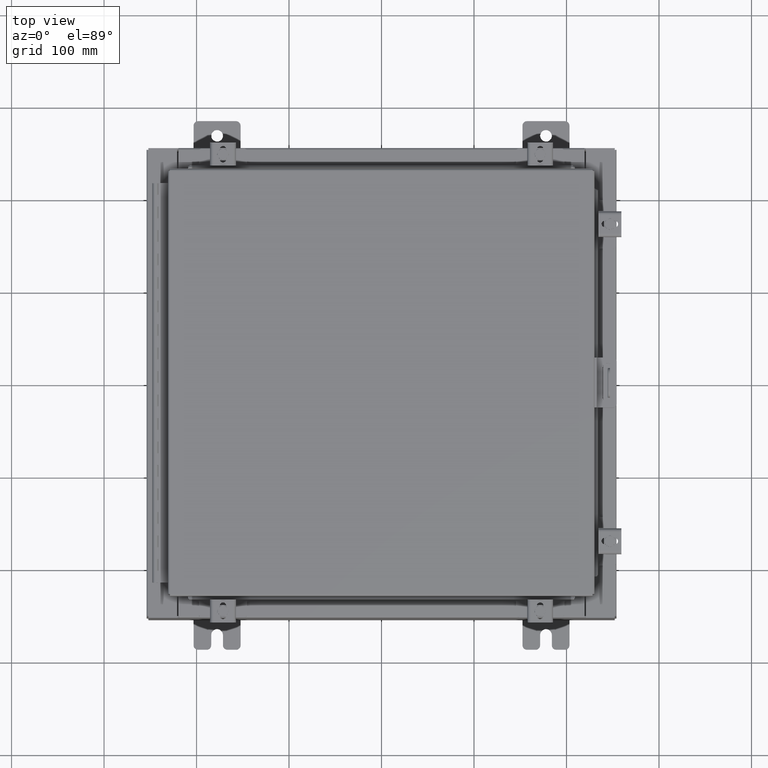
[diagram: clean part render]
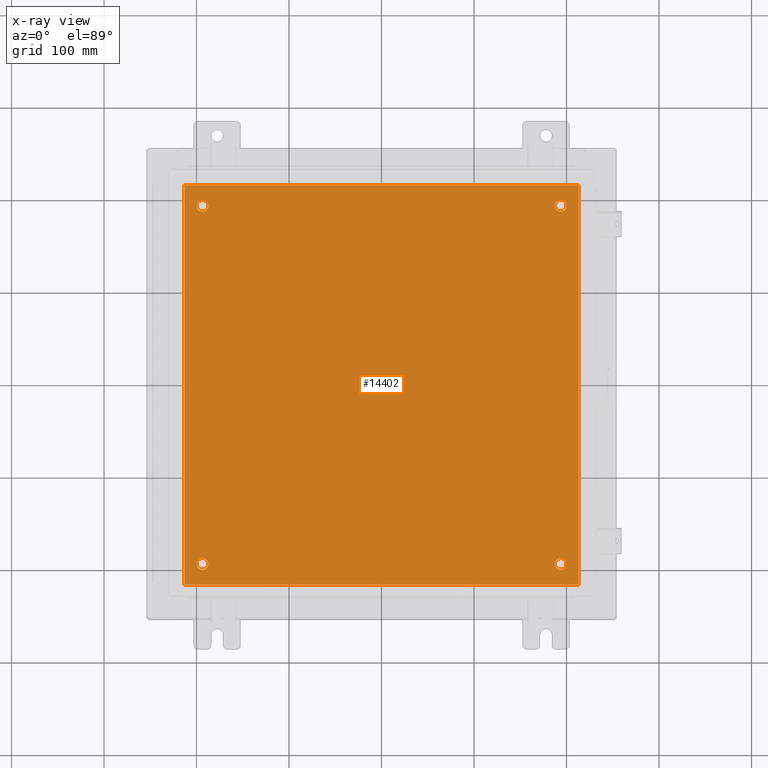
[diagram: x-ray — body ghosted, one internal face saturated and labeled with its STEP entity id]
A machine part, top view, then the same camera in x-ray: the body is ghosted and one INTERNAL B-rep face — a face not visible from any outside direction — is saturated and labeled: STEP entity #14402.
In plain terms, the highlighted planar face has unit normal (0, 0, -1).
Its self-contained STEP definition (entity closure, byte-faithful):
#135 = EDGE_CURVE ( 'NONE', #26607, #20626, #16472, .T. ) ;
#277 = DIRECTION ( 'NONE',  ( -1.000000000000000000, 0.0000000000000000000, -0.0000000000000000000 ) ) ;
#475 = VERTEX_POINT ( 'NONE', #27109 ) ;
#501 = VERTEX_POINT ( 'NONE', #25567 ) ;
#660 = CARTESIAN_POINT ( 'NONE',  ( 8.383000000000000900, -8.499999999999998200, -0.1039999999999998100 ) ) ;
#861 = DIRECTION ( 'NONE',  ( -1.000000000000000000, 0.0000000000000000000, 0.0000000000000000000 ) ) ;
#1057 = AXIS2_PLACEMENT_3D ( 'NONE', #9293, #13876, #277 ) ;
#1334 = VERTEX_POINT ( 'NONE', #7831 ) ;
#2215 = CIRCLE ( 'NONE', #8486, 0.2499999999999987000 ) ;
#3222 = DIRECTION ( 'NONE',  ( -1.000000000000000000, 0.0000000000000000000, 0.0000000000000000000 ) ) ;
#3343 = CARTESIAN_POINT ( 'NONE',  ( -7.625000000000001800, -7.625000000000000900, -0.1039999999999999800 ) ) ;
#3371 = CIRCLE ( 'NONE', #8871, 0.2499999999999998100 ) ;
#3446 = DIRECTION ( 'NONE',  ( -1.000000000000000000, -0.0000000000000000000, -0.0000000000000000000 ) ) ;
#3896 = ORIENTED_EDGE ( 'NONE', *, *, #14567, .F. ) ;
#4110 = EDGE_LOOP ( 'NONE', ( #29515, #5730, #19603, #3896 ) ) ;
#4354 = EDGE_CURVE ( 'NONE', #12630, #10626, #23320, .T. ) ;
#4711 = PLANE ( 'NONE',  #1057 ) ;
#4756 = CARTESIAN_POINT ( 'NONE',  ( -7.375000000000001800, -7.625000000000000900, -0.1039999999999999800 ) ) ;
#4830 = CARTESIAN_POINT ( 'NONE',  ( -7.375000000000001800, 7.625000000000000900, -0.1039999999999999800 ) ) ;
#4879 = FACE_BOUND ( 'NONE', #17077, .T. ) ;
#4909 = EDGE_CURVE ( 'NONE', #20626, #12630, #22548, .T. ) ;
#4999 = CARTESIAN_POINT ( 'NONE',  ( -8.382999999999999100, -8.499999999999998200, -0.1039999999999998100 ) ) ;
#5106 = VECTOR ( 'NONE', #9996, 39.37007874015748100 ) ;
#5526 = EDGE_CURVE ( 'NONE', #19340, #14042, #2215, .T. ) ;
#5571 = EDGE_CURVE ( 'NONE', #501, #9579, #6824, .T. ) ;
#5625 = DIRECTION ( 'NONE',  ( -1.000000000000000000, 0.0000000000000000000, 0.0000000000000000000 ) ) ;
#5632 = CARTESIAN_POINT ( 'NONE',  ( -8.500000000000000000, 8.500000000000000000, -0.1039999999999999800 ) ) ;
#5635 = CARTESIAN_POINT ( 'NONE',  ( 7.625000000000001800, 7.625000000000000900, -0.1039999999999999800 ) ) ;
#5730 = ORIENTED_EDGE ( 'NONE', *, *, #4909, .F. ) ;
#6500 = ORIENTED_EDGE ( 'NONE', *, *, #5571, .T. ) ;
#6763 = DIRECTION ( 'NONE',  ( -0.0000000000000000000, -0.0000000000000000000, 1.000000000000000000 ) ) ;
#6824 = CIRCLE ( 'NONE', #14604, 0.2499999999999987000 ) ;
#7006 = EDGE_CURVE ( 'NONE', #1334, #9848, #8167, .T. ) ;
#7156 = EDGE_LOOP ( 'NONE', ( #27441, #6500 ) ) ;
#7590 = DIRECTION ( 'NONE',  ( 0.0000000000000000000, 1.000000000000000000, 0.0000000000000000000 ) ) ;
#7690 = DIRECTION ( 'NONE',  ( -0.0000000000000000000, -0.0000000000000000000, 1.000000000000000000 ) ) ;
#7733 = ORIENTED_EDGE ( 'NONE', *, *, #15878, .T. ) ;
#7831 = CARTESIAN_POINT ( 'NONE',  ( -7.875000000000001800, -7.625000000000000900, -0.1039999999999999800 ) ) ;
#7931 = DIRECTION ( 'NONE',  ( -1.000000000000000000, 0.0000000000000000000, 0.0000000000000000000 ) ) ;
#8142 = CARTESIAN_POINT ( 'NONE',  ( -8.382999999999999100, 8.500000000000000000, -0.1039999999999998100 ) ) ;
#8167 = CIRCLE ( 'NONE', #9658, 0.2499999999999998100 ) ;
#8333 = CIRCLE ( 'NONE', #26374, 0.2499999999999987000 ) ;
#8424 = CARTESIAN_POINT ( 'NONE',  ( -8.500000000000000000, -8.499999999999998200, -0.1039999999999999800 ) ) ;
#8486 = AXIS2_PLACEMENT_3D ( 'NONE', #14575, #16887, #3222 ) ;
#8666 = AXIS2_PLACEMENT_3D ( 'NONE', #12622, #28611, #14918 ) ;
#8770 = CIRCLE ( 'NONE', #26466, 0.2499999999999998100 ) ;
#8871 = AXIS2_PLACEMENT_3D ( 'NONE', #10112, #26102, #12413 ) ;
#9293 = CARTESIAN_POINT ( 'NONE',  ( 0.0000000000000000000, 0.0000000000000000000, -0.1039999999999999800 ) ) ;
#9579 = VERTEX_POINT ( 'NONE', #15486 ) ;
#9658 = AXIS2_PLACEMENT_3D ( 'NONE', #27767, #14055, #861 ) ;
#9848 = VERTEX_POINT ( 'NONE', #4756 ) ;
#9994 = ORIENTED_EDGE ( 'NONE', *, *, #7006, .T. ) ;
#9996 = DIRECTION ( 'NONE',  ( 1.000000000000000000, 0.0000000000000000000, 0.0000000000000000000 ) ) ;
#10080 = DIRECTION ( 'NONE',  ( -1.000000000000000000, 0.0000000000000000000, 0.0000000000000000000 ) ) ;
#10105 = EDGE_CURVE ( 'NONE', #9579, #501, #8333, .T. ) ;
#10112 = CARTESIAN_POINT ( 'NONE',  ( -7.625000000000001800, 7.625000000000000900, -0.1039999999999999800 ) ) ;
#10225 = FACE_BOUND ( 'NONE', #7156, .T. ) ;
#10423 = VECTOR ( 'NONE', #15179, 39.37007874015748100 ) ;
#10579 = CARTESIAN_POINT ( 'NONE',  ( -8.382999999999999100, 8.500000000000000000, -0.1039999999999998100 ) ) ;
#10626 = VERTEX_POINT ( 'NONE', #27977 ) ;
#10655 = ORIENTED_EDGE ( 'NONE', *, *, #29297, .T. ) ;
#12004 = LINE ( 'NONE', #660, #18784 ) ;
#12413 = DIRECTION ( 'NONE',  ( -1.000000000000000000, 0.0000000000000000000, 0.0000000000000000000 ) ) ;
#12607 = CARTESIAN_POINT ( 'NONE',  ( 7.875000000000000900, -7.625000000000000900, -0.1039999999999999800 ) ) ;
#12622 = CARTESIAN_POINT ( 'NONE',  ( 7.625000000000001800, -7.625000000000000900, -0.1039999999999999800 ) ) ;
#12630 = VERTEX_POINT ( 'NONE', #4999 ) ;
#13517 = EDGE_CURVE ( 'NONE', #14042, #19340, #14214, .T. ) ;
#13876 = DIRECTION ( 'NONE',  ( 0.0000000000000000000, 0.0000000000000000000, -1.000000000000000000 ) ) ;
#14042 = VERTEX_POINT ( 'NONE', #12607 ) ;
#14055 = DIRECTION ( 'NONE',  ( -0.0000000000000000000, -0.0000000000000000000, 1.000000000000000000 ) ) ;
#14214 = CIRCLE ( 'NONE', #8666, 0.2499999999999987000 ) ;
#14402 = ADVANCED_FACE ( 'NONE', ( #4879, #27758, #10225, #22342, #21638 ), #4711, .T. ) ;
#14567 = EDGE_CURVE ( 'NONE', #10626, #26607, #12004, .T. ) ;
#14575 = CARTESIAN_POINT ( 'NONE',  ( 7.625000000000001800, -7.625000000000000900, -0.1039999999999999800 ) ) ;
#14604 = AXIS2_PLACEMENT_3D ( 'NONE', #25250, #7690, #10080 ) ;
#14918 = DIRECTION ( 'NONE',  ( -1.000000000000000000, 0.0000000000000000000, 0.0000000000000000000 ) ) ;
#14966 = EDGE_CURVE ( 'NONE', #475, #19205, #8770, .T. ) ;
#15179 = DIRECTION ( 'NONE',  ( 0.0000000000000000000, -1.000000000000000000, 0.0000000000000000000 ) ) ;
#15486 = CARTESIAN_POINT ( 'NONE',  ( 7.875000000000000900, 7.625000000000000900, -0.1039999999999999800 ) ) ;
#15498 = CARTESIAN_POINT ( 'NONE',  ( 8.383000000000000900, 8.500000000000000000, -0.1039999999999999800 ) ) ;
#15878 = EDGE_CURVE ( 'NONE', #19205, #475, #3371, .T. ) ;
#16334 = ORIENTED_EDGE ( 'NONE', *, *, #13517, .T. ) ;
#16472 = LINE ( 'NONE', #5632, #22511 ) ;
#16887 = DIRECTION ( 'NONE',  ( -0.0000000000000000000, -0.0000000000000000000, 1.000000000000000000 ) ) ;
#17077 = EDGE_LOOP ( 'NONE', ( #10655, #9994 ) ) ;
#18784 = VECTOR ( 'NONE', #7590, 39.37007874015748100 ) ;
#19069 = CARTESIAN_POINT ( 'NONE',  ( 7.375000000000003600, -7.625000000000000900, -0.1039999999999999800 ) ) ;
#19205 = VERTEX_POINT ( 'NONE', #4830 ) ;
#19288 = DIRECTION ( 'NONE',  ( -0.0000000000000000000, -0.0000000000000000000, 1.000000000000000000 ) ) ;
#19340 = VERTEX_POINT ( 'NONE', #19069 ) ;
#19603 = ORIENTED_EDGE ( 'NONE', *, *, #135, .F. ) ;
#20426 = CARTESIAN_POINT ( 'NONE',  ( -7.625000000000001800, 7.625000000000000900, -0.1039999999999999800 ) ) ;
#20626 = VERTEX_POINT ( 'NONE', #8142 ) ;
#21575 = DIRECTION ( 'NONE',  ( -0.0000000000000000000, -0.0000000000000000000, 1.000000000000000000 ) ) ;
#21638 = FACE_OUTER_BOUND ( 'NONE', #4110, .T. ) ;
#22342 = FACE_BOUND ( 'NONE', #24572, .T. ) ;
#22511 = VECTOR ( 'NONE', #3446, 39.37007874015748100 ) ;
#22548 = LINE ( 'NONE', #10579, #10423 ) ;
#22714 = DIRECTION ( 'NONE',  ( -1.000000000000000000, 0.0000000000000000000, 0.0000000000000000000 ) ) ;
#23320 = LINE ( 'NONE', #8424, #5106 ) ;
#23356 = ORIENTED_EDGE ( 'NONE', *, *, #5526, .T. ) ;
#24115 = EDGE_LOOP ( 'NONE', ( #16334, #23356 ) ) ;
#24572 = EDGE_LOOP ( 'NONE', ( #7733, #27292 ) ) ;
#25250 = CARTESIAN_POINT ( 'NONE',  ( 7.625000000000001800, 7.625000000000000900, -0.1039999999999999800 ) ) ;
#25567 = CARTESIAN_POINT ( 'NONE',  ( 7.375000000000003600, 7.625000000000000900, -0.1039999999999999800 ) ) ;
#25935 = AXIS2_PLACEMENT_3D ( 'NONE', #3343, #19288, #5625 ) ;
#26102 = DIRECTION ( 'NONE',  ( -0.0000000000000000000, -0.0000000000000000000, 1.000000000000000000 ) ) ;
#26374 = AXIS2_PLACEMENT_3D ( 'NONE', #5635, #21575, #7931 ) ;
#26466 = AXIS2_PLACEMENT_3D ( 'NONE', #20426, #6763, #22714 ) ;
#26607 = VERTEX_POINT ( 'NONE', #15498 ) ;
#26655 = CIRCLE ( 'NONE', #25935, 0.2499999999999998100 ) ;
#27109 = CARTESIAN_POINT ( 'NONE',  ( -7.875000000000001800, 7.625000000000000900, -0.1039999999999999800 ) ) ;
#27292 = ORIENTED_EDGE ( 'NONE', *, *, #14966, .T. ) ;
#27441 = ORIENTED_EDGE ( 'NONE', *, *, #10105, .T. ) ;
#27758 = FACE_BOUND ( 'NONE', #24115, .T. ) ;
#27767 = CARTESIAN_POINT ( 'NONE',  ( -7.625000000000001800, -7.625000000000000900, -0.1039999999999999800 ) ) ;
#27977 = CARTESIAN_POINT ( 'NONE',  ( 8.383000000000000900, -8.499999999999998200, -0.1039999999999999800 ) ) ;
#28611 = DIRECTION ( 'NONE',  ( -0.0000000000000000000, -0.0000000000000000000, 1.000000000000000000 ) ) ;
#29297 = EDGE_CURVE ( 'NONE', #9848, #1334, #26655, .T. ) ;
#29515 = ORIENTED_EDGE ( 'NONE', *, *, #4354, .F. ) ;